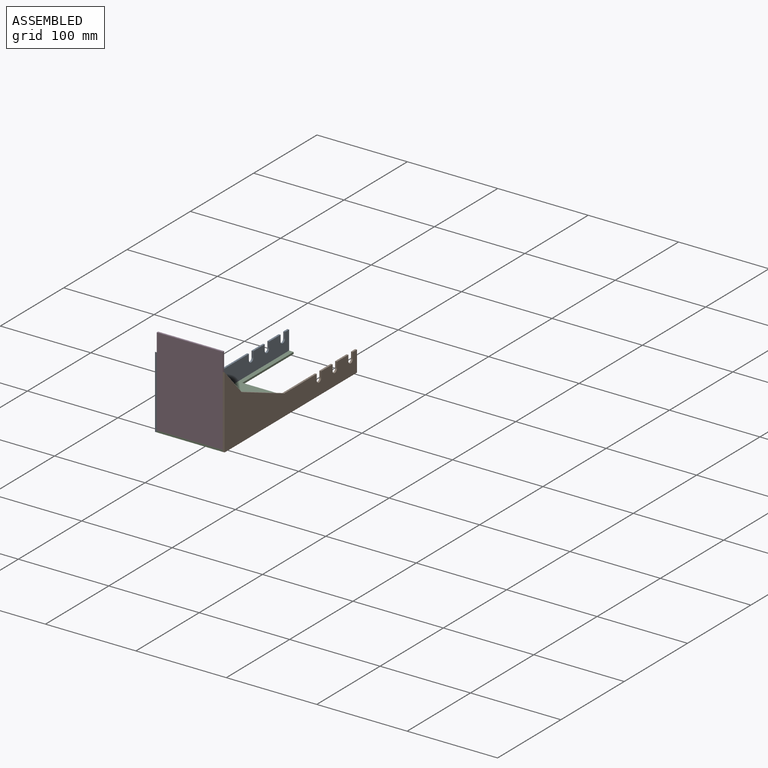
[diagram: assembled view]
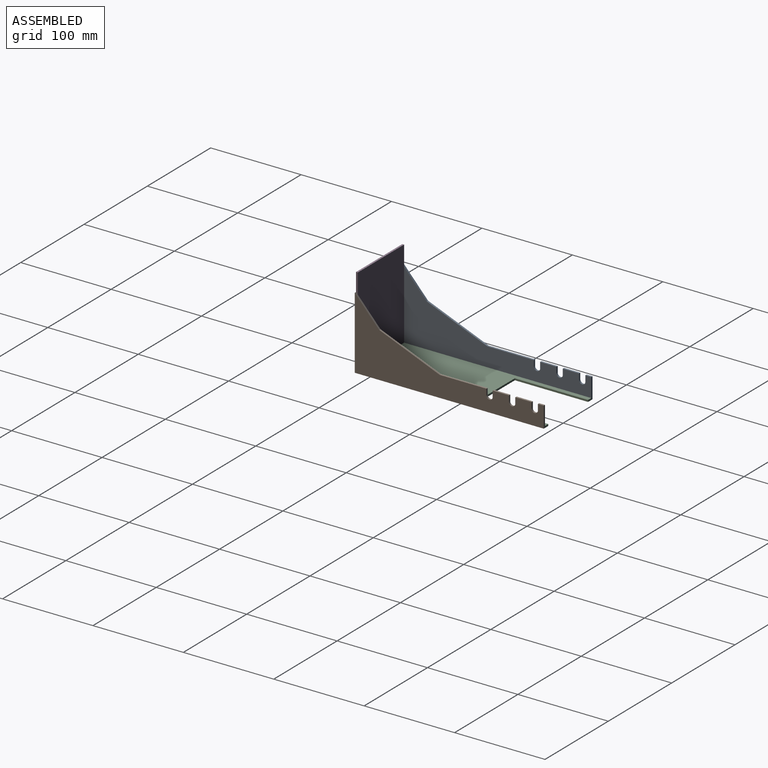
[diagram: assembled view, second angle]
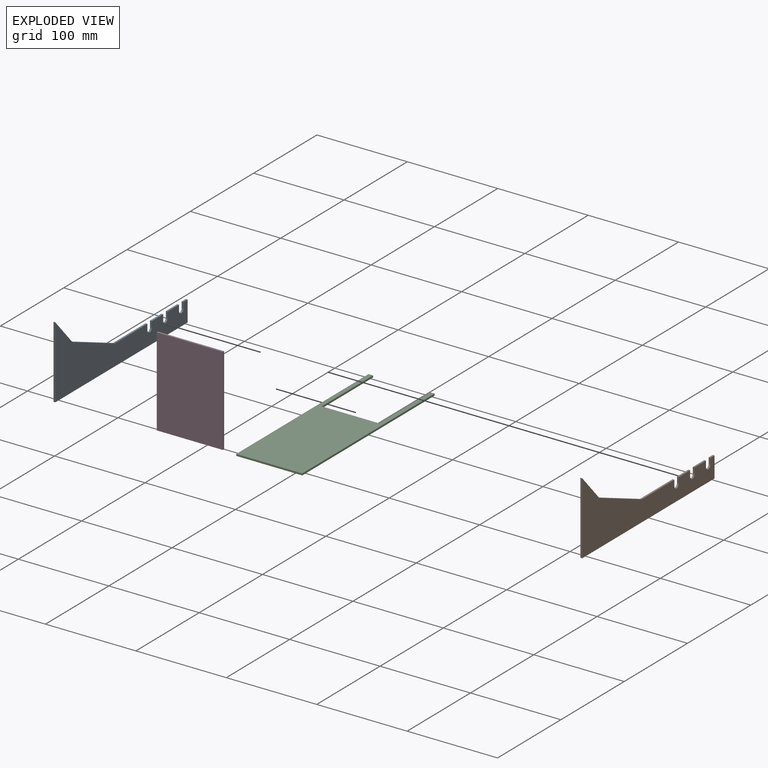
[diagram: exploded view]
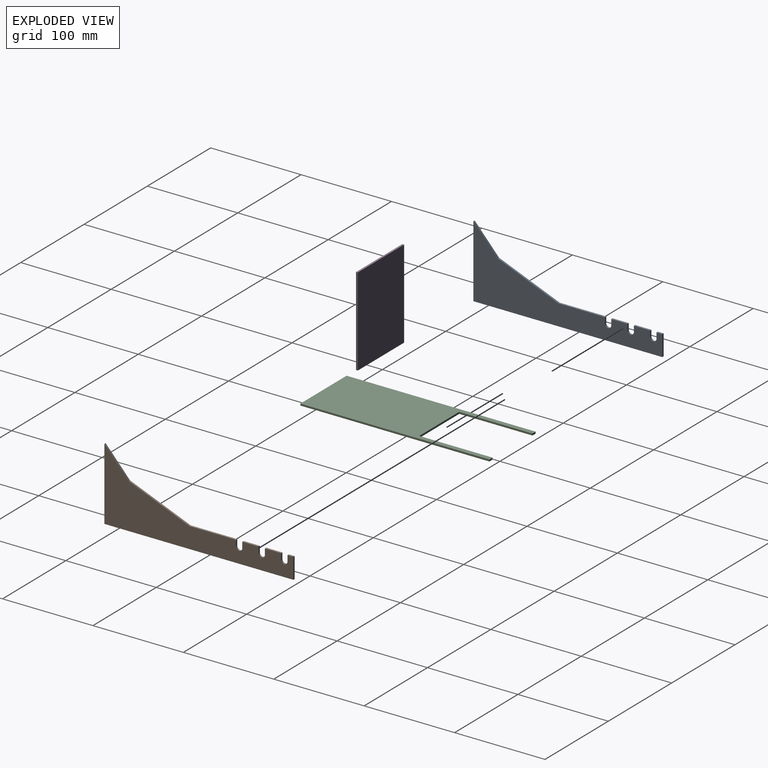
[diagram: exploded view, second angle]
ASSEMBLY  parts=4 mates=3
PART A: 20 faces, bbox 2x209x80 mm
  f0: cylinder r=3.5mm len=7mm, axis (-1,0,0), area 22.5mm2, adj f1,f17,f18,f19
  f1: plane 6.5x2mm, normal (0,1,0), area 13mm2, adj f0,f2,f18,f19
  f2: plane 17.99x2mm, normal (0,0,1), area 36mm2, adj f1,f3,f18,f19
  f3: plane 6.5x2mm, normal (0,-1,0), area 13mm2, adj f2,f4,f18,f19
  f4: cylinder r=3.5mm len=7mm, axis (-1,0,0), area 22mm2, adj f3,f5,f18,f19
  f5: plane 6.5x2mm, normal (0,1,0), area 13mm2, adj f4,f6,f18,f19
  f6: plane 18x2mm, normal (0,0,1), area 36mm2, adj f5,f7,f18,f19
  f7: plane 6.5x2mm, normal (0,-1,0), area 13mm2, adj f6,f8,f18,f19
  f8: cylinder r=3.5mm len=7mm, axis (-1,0,0), area 22mm2, adj f7,f9,f18,f19
  f9: plane 6.5x2mm, normal (0,1,0), area 13mm2, adj f8,f10,f18,f19
  f10: plane 6.5x2mm, normal (0,0,1), area 13mm2, adj f9,f11,f18,f19
  f11: plane 23x2mm, normal (0,-1,0), area 46mm2, adj f10,f12,f18,f19
  f12: plane 209x2mm, normal (0,0,-1), area 418mm2, adj f11,f13,f18,f19
  f13: plane 80x2mm, normal (0,1,0), area 160mm2, adj f12,f14,f18,f19
  f14: plane 30x27mm, normal (0,-0.74,0.67), area 80.7mm2, adj f13,f15,f18,f19
  f15: plane 67x27mm, normal (0,-0.37,0.93), area 144.5mm2, adj f14,f16,f18,f19
  f16: plane 51.51x2mm, normal (0,0,1), area 103mm2, adj f15,f17,f18,f19
  f17: plane 6.23x2mm, normal (0,-1,0), area 12.5mm2, adj f0,f16,f18,f19
  f18: plane 209x80mm, normal (1,0,0), area 6651.3mm2, adj f0,f1,f2,f3,f4,f5,f6,f7
  f19: plane 209x80mm, normal (-1,0,0), area 6651.3mm2, adj f0,f1,f2,f3,f4,f5,f6,f7
PART B: same geometry as A
PART C: 10 faces, bbox 73x209x2 mm
  f0: plane 5x2mm, normal (0,1,0), area 10mm2, adj f1,f7,f8,f9
  f1: plane 209x2mm, normal (-1,0,0), area 418mm2, adj f0,f2,f8,f9
  f2: plane 73x2mm, normal (0,-1,0), area 146mm2, adj f1,f3,f8,f9
  f3: plane 209x2mm, normal (1,0,0), area 418mm2, adj f2,f4,f8,f9
  f4: plane 5x2mm, normal (0,1,0), area 10mm2, adj f3,f5,f8,f9
  f5: plane 81x2mm, normal (-1,0,0), area 162mm2, adj f4,f6,f8,f9
  f6: plane 63x2mm, normal (0,1,0), area 126mm2, adj f5,f7,f8,f9
  f7: plane 81x2mm, normal (1,0,0), area 162mm2, adj f0,f6,f8,f9
  f8: plane 209x73mm, normal (0,0,1), area 10154mm2, adj f0,f1,f2,f3,f4,f5,f6,f7
  f9: plane 209x73mm, normal (0,0,-1), area 10154mm2, adj f0,f1,f2,f3,f4,f5,f6,f7
PART D: 6 faces, bbox 73x98x2 mm
  f0: plane 73x2mm, normal (0,-1,0), area 146mm2, adj f1,f3,f4,f5
  f1: plane 98x2mm, normal (1,0,0), area 196mm2, adj f0,f2,f4,f5
  f2: plane 73x2mm, normal (0,1,0), area 146mm2, adj f1,f3,f4,f5
  f3: plane 98x2mm, normal (-1,0,0), area 196mm2, adj f0,f2,f4,f5
  f4: plane 98x73mm, normal (0,0,1), area 7154mm2, adj f0,f1,f2,f3
  f5: plane 98x73mm, normal (0,0,-1), area 7154mm2, adj f0,f1,f2,f3
PLACE A rot(axis=(0,0,1),180deg) t=(-48.56,-111.96,-1.74)mm
PLACE B rot(axis=(0,0,1),180deg) t=(26.44,-111.96,-1.74)mm
PLACE C t=(-12.06,-7.46,-1.74)mm
PLACE D rot(axis=(1,0,0),90deg) t=(-16.93,-109.96,0.26)mm
MATE fastened D.f0 <-> C.f8  axis (0,0,-1) through (-12.06,-111.96,0.26)mm
MATE fastened A.f19 <-> C.f1  axis (1,0,0) through (-48.56,-111.96,-1.74)mm
MATE fastened B.f18 <-> C.f3  axis (-1,0,0) through (24.44,-111.96,-1.74)mm
